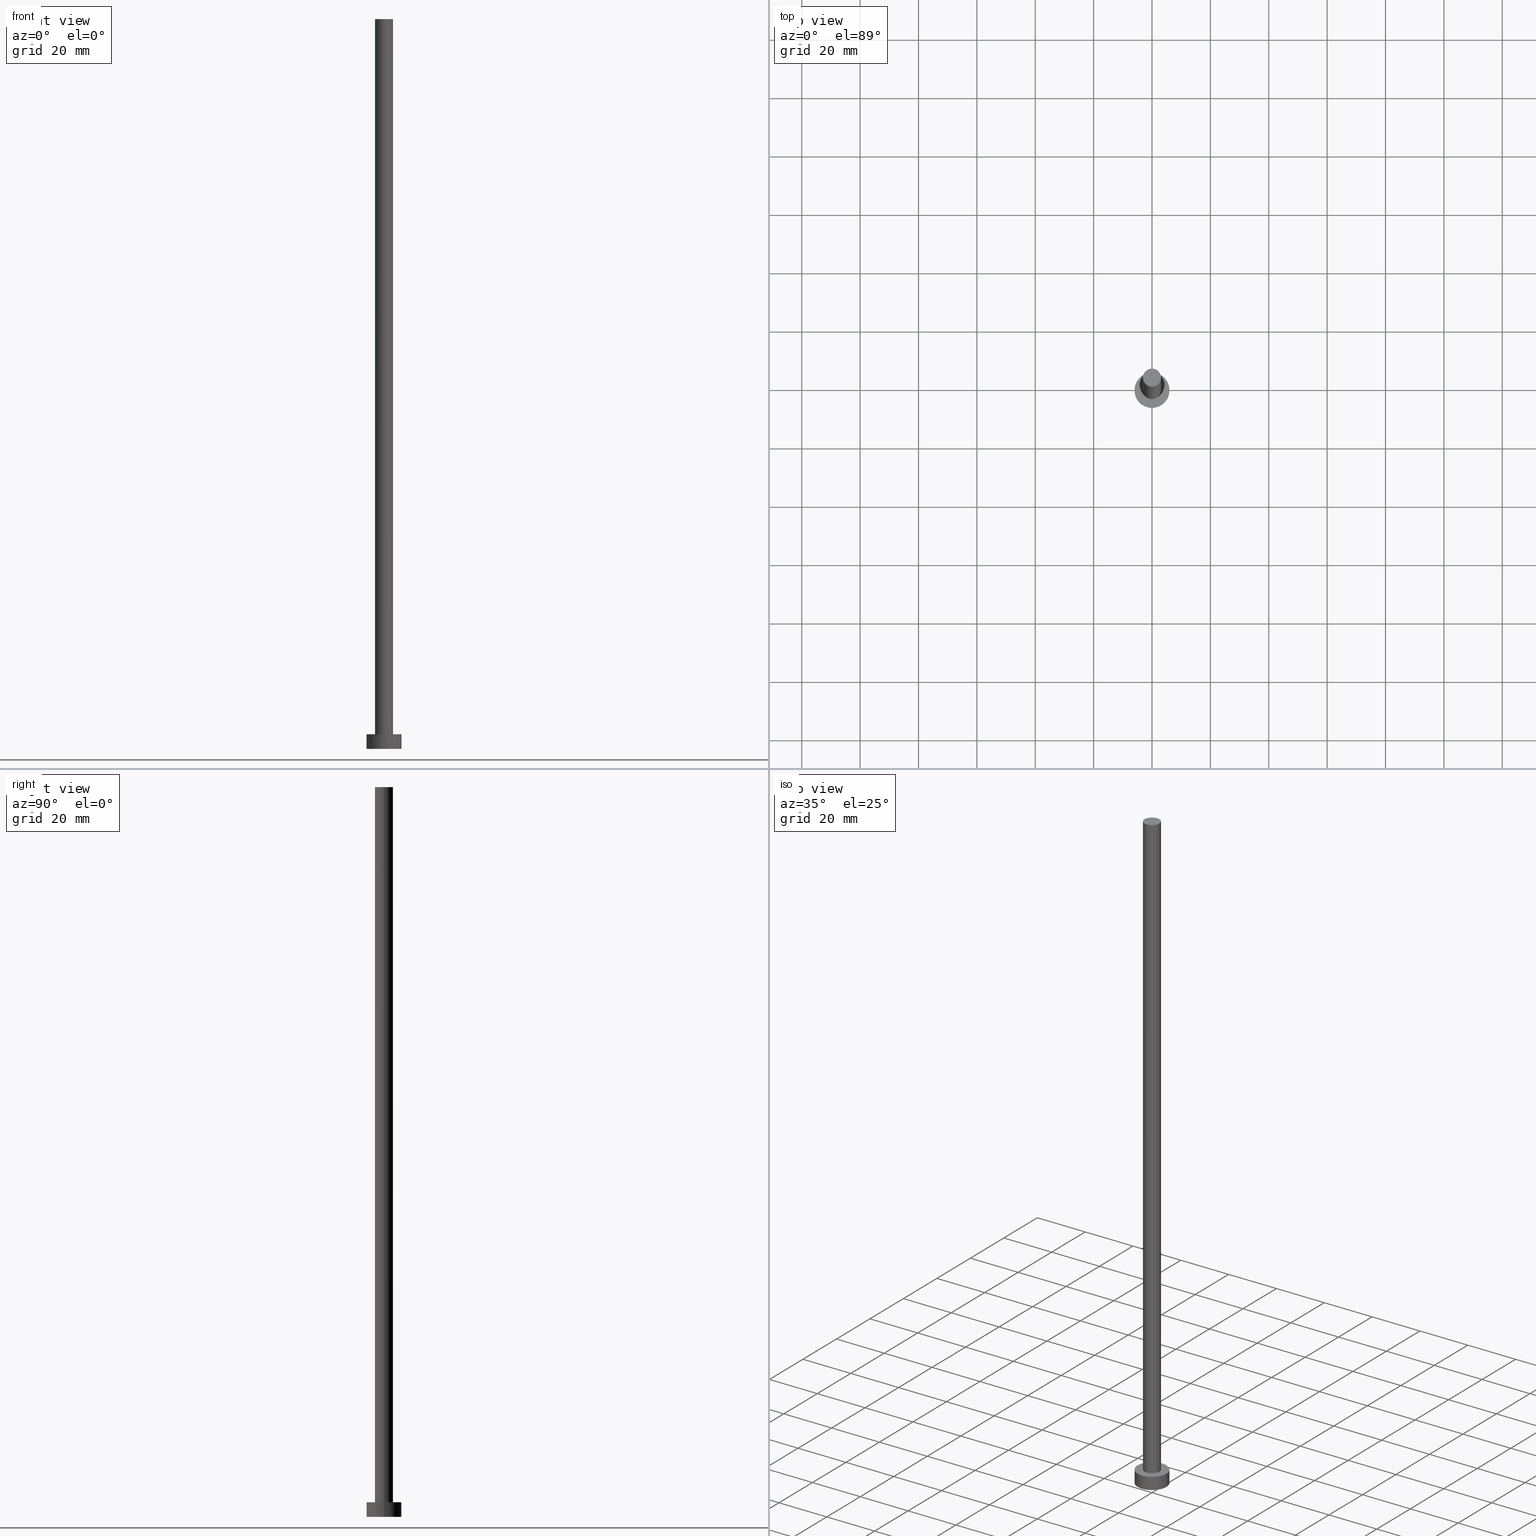
[diagram: canonical four-view strip — front | top / right | iso, engineering-drawing reading convention]
A machine part, canonical four-view strip (front | top / right | iso — engineering-drawing reading convention). The complete STEP part file that produces these views, byte-faithful:
ISO-10303-21;
HEADER;
FILE_DESCRIPTION (( 'STEP AP203' ),
    '1' );
FILE_NAME ('3571.STEP',
    '2023-02-13T15:19:29',
    ( '' ),
    ( '' ),
    'SwSTEP 2.0',
    'SolidWorks 2019',
    '' );
FILE_SCHEMA (( 'CONFIG_CONTROL_DESIGN' ));
ENDSEC;

DATA;
#1 = CIRCLE ( 'NONE', #152, 6.000000000000000888 ) ;
#2 = CARTESIAN_POINT ( 'NONE',  ( -6.000000000000000888, 0.000000000000000000, 5.000000000000000000 ) ) ;
#3 = DIRECTION ( 'NONE',  ( 1.000000000000000000, 0.000000000000000000, -0.000000000000000000 ) ) ;
#4 = DIRECTION ( 'NONE',  ( -0.000000000000000000, -0.000000000000000000, -1.000000000000000000 ) ) ;
#5 = EDGE_CURVE ( 'NONE', #32, #56, #54, .T. ) ;
#6 = ORIENTED_EDGE ( 'NONE', *, *, #50, .F. ) ;
#7 = CARTESIAN_POINT ( 'NONE',  ( 0.000000000000000000, 0.000000000000000000, 250.0000000000000000 ) ) ;
#8 = ORIENTED_EDGE ( 'NONE', *, *, #90, .F. ) ;
#9 = EDGE_CURVE ( 'NONE', #96, #78, #16, .T. ) ;
#10 =( NAMED_UNIT ( * ) SI_UNIT ( $, .STERADIAN. ) SOLID_ANGLE_UNIT ( ) );
#11 = APPLICATION_CONTEXT ( 'configuration controlled 3d designs of mechanical parts and assemblies' ) ;
#12 = AXIS2_PLACEMENT_3D ( 'NONE', #85, #209, #183 ) ;
#13 = EDGE_LOOP ( 'NONE', ( #6, #158 ) ) ;
#14 = CYLINDRICAL_SURFACE ( 'NONE', #147, 3.100000000000000089 ) ;
#15 = AXIS2_PLACEMENT_3D ( 'NONE', #99, #233, #92 ) ;
#16 = LINE ( 'NONE', #98, #137 ) ;
#17 = APPROVAL_STATUS ( 'not_yet_approved' ) ;
#18 = DIRECTION ( 'NONE',  ( 1.000000000000000000, 0.000000000000000000, 0.000000000000000000 ) ) ;
#19 = DIRECTION ( 'NONE',  ( 0.000000000000000000, 0.000000000000000000, 1.000000000000000000 ) ) ;
#20 = CALENDAR_DATE ( 2023, 13, 2 ) ;
#21 = ORGANIZATION ( 'NEUR�EN�', 'NEUR�EN�', '' ) ;
#22 = DIRECTION ( 'NONE',  ( -0.000000000000000000, -0.000000000000000000, -1.000000000000000000 ) ) ;
#23 = CC_DESIGN_PERSON_AND_ORGANIZATION_ASSIGNMENT ( #229, #214, ( #205 ) ) ;
#24 = FACE_BOUND ( 'NONE', #59, .T. ) ;
#25 = DIRECTION ( 'NONE',  ( 0.000000000000000000, 0.000000000000000000, 1.000000000000000000 ) ) ;
#26 = CC_DESIGN_SECURITY_CLASSIFICATION ( #66, ( #241 ) ) ;
#27 = AXIS2_PLACEMENT_3D ( 'NONE', #218, #37, #18 ) ;
#28 = PERSON_AND_ORGANIZATION ( #167, #21 ) ;
#29 = EDGE_LOOP ( 'NONE', ( #93, #139 ) ) ;
#30 = AXIS2_PLACEMENT_3D ( 'NONE', #235, #72, #150 ) ;
#31 = COORDINATED_UNIVERSAL_TIME_OFFSET ( 1, 0, .AHEAD. ) ;
#32 = VERTEX_POINT ( 'NONE', #77 ) ;
#33 = CC_DESIGN_DATE_AND_TIME_ASSIGNMENT ( #173, #200, ( #57 ) ) ;
#34 = ORIENTED_EDGE ( 'NONE', *, *, #5, .T. ) ;
#35 = ORIENTED_EDGE ( 'NONE', *, *, #5, .F. ) ;
#36 = CALENDAR_DATE ( 2023, 13, 2 ) ;
#37 = DIRECTION ( 'NONE',  ( 0.000000000000000000, 0.000000000000000000, 1.000000000000000000 ) ) ;
#38 = EDGE_CURVE ( 'NONE', #73, #154, #231, .T. ) ;
#39 = COORDINATED_UNIVERSAL_TIME_OFFSET ( 1, 0, .AHEAD. ) ;
#40 = DIRECTION ( 'NONE',  ( 0.000000000000000000, 0.000000000000000000, 1.000000000000000000 ) ) ;
#41 = CIRCLE ( 'NONE', #252, 6.000000000000000888 ) ;
#42 = PERSON_AND_ORGANIZATION ( #167, #21 ) ;
#43 =( GEOMETRIC_REPRESENTATION_CONTEXT ( 3 ) GLOBAL_UNCERTAINTY_ASSIGNED_CONTEXT ( ( #186 ) ) GLOBAL_UNIT_ASSIGNED_CONTEXT ( ( #51, #75, #10 ) ) REPRESENTATION_CONTEXT ( 'NONE', 'WORKASPACE' ) );
#44 = ADVANCED_FACE ( 'NONE', ( #177 ), #251, .T. ) ;
#45 = AXIS2_PLACEMENT_3D ( 'NONE', #228, #206, #109 ) ;
#46 = DIRECTION ( 'NONE',  ( 1.000000000000000000, 0.000000000000000000, 0.000000000000000000 ) ) ;
#47 = CARTESIAN_POINT ( 'NONE',  ( -6.000000000000000888, 0.000000000000000000, 5.000000000000000000 ) ) ;
#48 = LINE ( 'NONE', #47, #71 ) ;
#49 = PERSON_AND_ORGANIZATION_ROLE ( 'creator' ) ;
#50 = EDGE_CURVE ( 'NONE', #213, #191, #41, .T. ) ;
#51 =( LENGTH_UNIT ( ) NAMED_UNIT ( * ) SI_UNIT ( .MILLI., .METRE. ) );
#52 = ORIENTED_EDGE ( 'NONE', *, *, #90, .T. ) ;
#53 = MECHANICAL_CONTEXT ( 'NONE', #146, 'mechanical' ) ;
#54 = LINE ( 'NONE', #136, #226 ) ;
#55 = CARTESIAN_POINT ( 'NONE',  ( 6.000000000000000888, 7.347880794884120722E-16, 5.000000000000000000 ) ) ;
#56 = VERTEX_POINT ( 'NONE', #163 ) ;
#57 = PRODUCT_DEFINITION ( 'NEZN�M�', '', #241, #87 ) ;
#58 = PERSON_AND_ORGANIZATION ( #167, #21 ) ;
#59 = EDGE_LOOP ( 'NONE', ( #248, #171 ) ) ;
#60 = DATE_AND_TIME ( #102, #133 ) ;
#61 = ADVANCED_FACE ( 'NONE', ( #103 ), #202, .F. ) ;
#62 = APPROVAL_ROLE ( '' ) ;
#63 = APPROVAL_DATE_TIME ( #127, #204 ) ;
#64 = EDGE_CURVE ( 'NONE', #191, #213, #1, .T. ) ;
#65 = DIRECTION ( 'NONE',  ( -1.000000000000000000, 0.000000000000000000, 0.000000000000000000 ) ) ;
#66 = SECURITY_CLASSIFICATION ( '', '', #220 ) ;
#67 = CARTESIAN_POINT ( 'NONE',  ( 0.000000000000000000, 0.000000000000000000, 5.000000000000000000 ) ) ;
#68 = DIRECTION ( 'NONE',  ( -0.000000000000000000, -0.000000000000000000, -1.000000000000000000 ) ) ;
#69 = CC_DESIGN_PERSON_AND_ORGANIZATION_ASSIGNMENT ( #224, #182, ( #241 ) ) ;
#70 = ORIENTED_EDGE ( 'NONE', *, *, #114, .T. ) ;
#71 = VECTOR ( 'NONE', #68, 1000.000000000000000 ) ;
#72 = DIRECTION ( 'NONE',  ( 0.000000000000000000, 0.000000000000000000, 1.000000000000000000 ) ) ;
#73 = VERTEX_POINT ( 'NONE', #161 ) ;
#74 = VECTOR ( 'NONE', #175, 1000.000000000000000 ) ;
#75 =( NAMED_UNIT ( * ) PLANE_ANGLE_UNIT ( ) SI_UNIT ( $, .RADIAN. ) );
#76 = CALENDAR_DATE ( 2023, 13, 2 ) ;
#77 = CARTESIAN_POINT ( 'NONE',  ( 3.100000000000000089, 3.796405077356794918E-16, 250.0000000000000000 ) ) ;
#78 = VERTEX_POINT ( 'NONE', #80 ) ;
#79 = DIRECTION ( 'NONE',  ( 1.000000000000000000, 0.000000000000000000, 0.000000000000000000 ) ) ;
#80 = CARTESIAN_POINT ( 'NONE',  ( -3.100000000000000089, 0.000000000000000000, 5.000000000000000000 ) ) ;
#81 = CARTESIAN_POINT ( 'NONE',  ( 0.000000000000000000, 0.000000000000000000, 250.0000000000000000 ) ) ;
#82 = CARTESIAN_POINT ( 'NONE',  ( 0.000000000000000000, 0.000000000000000000, 0.000000000000000000 ) ) ;
#83 = EDGE_CURVE ( 'NONE', #32, #96, #184, .T. ) ;
#84 = CYLINDRICAL_SURFACE ( 'NONE', #88, 6.000000000000000888 ) ;
#85 = CARTESIAN_POINT ( 'NONE',  ( 0.000000000000000000, 0.000000000000000000, 250.0000000000000000 ) ) ;
#86 = FACE_OUTER_BOUND ( 'NONE', #151, .T. ) ;
#87 = DESIGN_CONTEXT ( 'detailed design', #11, 'design' ) ;
#88 = AXIS2_PLACEMENT_3D ( 'NONE', #207, #164, #65 ) ;
#89 = FACE_OUTER_BOUND ( 'NONE', #100, .T. ) ;
#90 = EDGE_CURVE ( 'NONE', #154, #213, #48, .T. ) ;
#91 = ORIENTED_EDGE ( 'NONE', *, *, #192, .F. ) ;
#92 = DIRECTION ( 'NONE',  ( 1.000000000000000000, 0.000000000000000000, 0.000000000000000000 ) ) ;
#93 = ORIENTED_EDGE ( 'NONE', *, *, #162, .T. ) ;
#94 = CLOSED_SHELL ( 'NONE', ( #225, #160, #153, #172, #61, #178, #44 ) ) ;
#95 = APPROVAL_DATE_TIME ( #170, #216 ) ;
#96 = VERTEX_POINT ( 'NONE', #111 ) ;
#97 = CC_DESIGN_APPROVAL ( #204, ( #241 ) ) ;
#98 = CARTESIAN_POINT ( 'NONE',  ( -3.100000000000000089, 0.000000000000000000, 250.0000000000000000 ) ) ;
#99 = CARTESIAN_POINT ( 'NONE',  ( 0.000000000000000000, 0.000000000000000000, 0.000000000000000000 ) ) ;
#100 = EDGE_LOOP ( 'NONE', ( #115, #91, #52, #120 ) ) ;
#101 = AXIS2_PLACEMENT_3D ( 'NONE', #243, #25, #148 ) ;
#102 = CALENDAR_DATE ( 2023, 13, 2 ) ;
#103 = FACE_OUTER_BOUND ( 'NONE', #13, .T. ) ;
#104 = SHAPE_DEFINITION_REPRESENTATION ( #237, #159 ) ;
#105 = DIRECTION ( 'NONE',  ( 0.000000000000000000, 0.000000000000000000, 1.000000000000000000 ) ) ;
#106 = APPROVAL_STATUS ( 'not_yet_approved' ) ;
#107 = LOCAL_TIME ( 16, 19, 29.00000000000000000, #39 ) ;
#108 = FACE_OUTER_BOUND ( 'NONE', #132, .T. ) ;
#109 = DIRECTION ( 'NONE',  ( 1.000000000000000000, 0.000000000000000000, 0.000000000000000000 ) ) ;
#110 = CARTESIAN_POINT ( 'NONE',  ( 0.000000000000000000, 0.000000000000000000, 250.0000000000000000 ) ) ;
#111 = CARTESIAN_POINT ( 'NONE',  ( -3.100000000000000089, 0.000000000000000000, 250.0000000000000000 ) ) ;
#112 = AXIS2_PLACEMENT_3D ( 'NONE', #81, #105, #254 ) ;
#113 = PERSON_AND_ORGANIZATION ( #167, #21 ) ;
#114 = EDGE_CURVE ( 'NONE', #56, #78, #239, .T. ) ;
#115 = ORIENTED_EDGE ( 'NONE', *, *, #222, .F. ) ;
#116 = FACE_OUTER_BOUND ( 'NONE', #155, .T. ) ;
#117 = ORIENTED_EDGE ( 'NONE', *, *, #38, .F. ) ;
#118 = APPROVAL_STATUS ( 'not_yet_approved' ) ;
#119 = APPLICATION_PROTOCOL_DEFINITION ( 'international standard', 'config_control_design', 1994, #11 ) ;
#120 = ORIENTED_EDGE ( 'NONE', *, *, #50, .T. ) ;
#121 = AXIS2_PLACEMENT_3D ( 'NONE', #129, #22, #255 ) ;
#122 = CC_DESIGN_APPROVAL ( #216, ( #57 ) ) ;
#123 = ORIENTED_EDGE ( 'NONE', *, *, #9, .T. ) ;
#124 = PERSON_AND_ORGANIZATION ( #167, #21 ) ;
#125 = DIRECTION ( 'NONE',  ( 0.000000000000000000, 0.000000000000000000, 1.000000000000000000 ) ) ;
#126 = APPROVAL_DATE_TIME ( #60, #210 ) ;
#127 = DATE_AND_TIME ( #193, #219 ) ;
#128 = CARTESIAN_POINT ( 'NONE',  ( 0.000000000000000000, 0.000000000000000000, 0.000000000000000000 ) ) ;
#129 = CARTESIAN_POINT ( 'NONE',  ( 0.000000000000000000, 0.000000000000000000, 5.000000000000000000 ) ) ;
#130 = DIRECTION ( 'NONE',  ( 0.000000000000000000, 0.000000000000000000, 1.000000000000000000 ) ) ;
#131 = AXIS2_PLACEMENT_3D ( 'NONE', #188, #130, #46 ) ;
#132 = EDGE_LOOP ( 'NONE', ( #194, #230 ) ) ;
#133 = LOCAL_TIME ( 16, 19, 29.00000000000000000, #201 ) ;
#134 = CC_DESIGN_DATE_AND_TIME_ASSIGNMENT ( #141, #238, ( #66 ) ) ;
#135 = LINE ( 'NONE', #55, #74 ) ;
#136 = CARTESIAN_POINT ( 'NONE',  ( 3.100000000000000089, 3.796405077356794918E-16, 250.0000000000000000 ) ) ;
#137 = VECTOR ( 'NONE', #250, 1000.000000000000000 ) ;
#138 = DIRECTION ( 'NONE',  ( -1.000000000000000000, 0.000000000000000000, 0.000000000000000000 ) ) ;
#139 = ORIENTED_EDGE ( 'NONE', *, *, #83, .T. ) ;
#140 = CIRCLE ( 'NONE', #30, 6.000000000000000888 ) ;
#141 = DATE_AND_TIME ( #20, #107 ) ;
#142 = EDGE_LOOP ( 'NONE', ( #117, #174, #234, #8 ) ) ;
#143 = DIRECTION ( 'NONE',  ( 1.000000000000000000, 0.000000000000000000, 0.000000000000000000 ) ) ;
#144 = PERSON_AND_ORGANIZATION_ROLE ( 'classification_officer' ) ;
#145 = CC_DESIGN_PERSON_AND_ORGANIZATION_ASSIGNMENT ( #28, #49, ( #57 ) ) ;
#146 = APPLICATION_CONTEXT ( 'configuration controlled 3d designs of mechanical parts and assemblies' ) ;
#147 = AXIS2_PLACEMENT_3D ( 'NONE', #7, #211, #138 ) ;
#148 = DIRECTION ( 'NONE',  ( 1.000000000000000000, 0.000000000000000000, 0.000000000000000000 ) ) ;
#149 = CIRCLE ( 'NONE', #101, 3.100000000000000089 ) ;
#150 = DIRECTION ( 'NONE',  ( 1.000000000000000000, 0.000000000000000000, 0.000000000000000000 ) ) ;
#151 = EDGE_LOOP ( 'NONE', ( #35, #232, #123, #157 ) ) ;
#152 = AXIS2_PLACEMENT_3D ( 'NONE', #128, #40, #79 ) ;
#153 = ADVANCED_FACE ( 'NONE', ( #89 ), #244, .T. ) ;
#154 = VERTEX_POINT ( 'NONE', #2 ) ;
#155 = EDGE_LOOP ( 'NONE', ( #215, #34, #70, #195 ) ) ;
#156 = APPLICATION_PROTOCOL_DEFINITION ( 'international standard', 'config_control_design', 1994, #146 ) ;
#157 = ORIENTED_EDGE ( 'NONE', *, *, #169, .T. ) ;
#158 = ORIENTED_EDGE ( 'NONE', *, *, #64, .F. ) ;
#159 = ADVANCED_BREP_SHAPE_REPRESENTATION ( '3571', ( #196, #15 ), #43 ) ;
#160 = ADVANCED_FACE ( 'NONE', ( #166 ), #84, .T. ) ;
#161 = CARTESIAN_POINT ( 'NONE',  ( 6.000000000000000888, 7.347880794884120722E-16, 5.000000000000000000 ) ) ;
#162 = EDGE_CURVE ( 'NONE', #96, #32, #149, .T. ) ;
#163 = CARTESIAN_POINT ( 'NONE',  ( 3.100000000000000089, 3.796405077356794918E-16, 5.000000000000000000 ) ) ;
#164 = DIRECTION ( 'NONE',  ( -0.000000000000000000, -0.000000000000000000, -1.000000000000000000 ) ) ;
#165 = AXIS2_PLACEMENT_3D ( 'NONE', #110, #4, #187 ) ;
#166 = FACE_OUTER_BOUND ( 'NONE', #142, .T. ) ;
#167 = PERSON ( 'NEUR�EN�', 'NEUR�EN�', 'NEUR�EN�', ('NEUR�EN�'), ('NEUR�EN�'), ('NEUR�EN�') ) ;
#168 = CYLINDRICAL_SURFACE ( 'NONE', #165, 3.100000000000000089 ) ;
#169 = EDGE_CURVE ( 'NONE', #78, #56, #236, .T. ) ;
#170 = DATE_AND_TIME ( #76, #199 ) ;
#171 = ORIENTED_EDGE ( 'NONE', *, *, #114, .F. ) ;
#172 = ADVANCED_FACE ( 'NONE', ( #24, #108 ), #208, .T. ) ;
#173 = DATE_AND_TIME ( #36, #223 ) ;
#174 = ORIENTED_EDGE ( 'NONE', *, *, #222, .T. ) ;
#175 = DIRECTION ( 'NONE',  ( -0.000000000000000000, -0.000000000000000000, -1.000000000000000000 ) ) ;
#176 = APPROVAL_ROLE ( '' ) ;
#177 = FACE_OUTER_BOUND ( 'NONE', #29, .T. ) ;
#178 = ADVANCED_FACE ( 'NONE', ( #86 ), #168, .T. ) ;
#179 = AXIS2_PLACEMENT_3D ( 'NONE', #221, #19, #181 ) ;
#180 = APPROVAL_PERSON_ORGANIZATION ( #113, #204, #190 ) ;
#181 = DIRECTION ( 'NONE',  ( 1.000000000000000000, 0.000000000000000000, -0.000000000000000000 ) ) ;
#182 = PERSON_AND_ORGANIZATION_ROLE ( 'creator' ) ;
#183 = DIRECTION ( 'NONE',  ( 1.000000000000000000, 0.000000000000000000, 0.000000000000000000 ) ) ;
#184 = CIRCLE ( 'NONE', #12, 3.100000000000000089 ) ;
#185 = DIRECTION ( 'NONE',  ( 0.000000000000000000, 0.000000000000000000, 1.000000000000000000 ) ) ;
#186 = UNCERTAINTY_MEASURE_WITH_UNIT (LENGTH_MEASURE( 1.000000000000000082E-05 ), #51, 'distance_accuracy_value', 'NONE');
#187 = DIRECTION ( 'NONE',  ( -1.000000000000000000, 0.000000000000000000, 0.000000000000000000 ) ) ;
#188 = CARTESIAN_POINT ( 'NONE',  ( 0.000000000000000000, 0.000000000000000000, 5.000000000000000000 ) ) ;
#189 = AXIS2_PLACEMENT_3D ( 'NONE', #67, #185, #3 ) ;
#190 = APPROVAL_ROLE ( '' ) ;
#191 = VERTEX_POINT ( 'NONE', #249 ) ;
#192 = EDGE_CURVE ( 'NONE', #154, #73, #140, .T. ) ;
#193 = CALENDAR_DATE ( 2023, 13, 2 ) ;
#194 = ORIENTED_EDGE ( 'NONE', *, *, #192, .T. ) ;
#195 = ORIENTED_EDGE ( 'NONE', *, *, #9, .F. ) ;
#196 = MANIFOLD_SOLID_BREP ( 'P�idat vysunut�m3', #94 ) ;
#197 = COORDINATED_UNIVERSAL_TIME_OFFSET ( 1, 0, .AHEAD. ) ;
#198 = DIRECTION ( 'NONE',  ( -0.000000000000000000, -0.000000000000000000, -1.000000000000000000 ) ) ;
#199 = LOCAL_TIME ( 16, 19, 29.00000000000000000, #197 ) ;
#200 = DATE_TIME_ROLE ( 'creation_date' ) ;
#201 = COORDINATED_UNIVERSAL_TIME_OFFSET ( 1, 0, .AHEAD. ) ;
#202 = PLANE ( 'NONE',  #179 ) ;
#203 = PERSON_AND_ORGANIZATION_ROLE ( 'design_supplier' ) ;
#204 = APPROVAL ( #17, 'NEUR�EN�' ) ;
#205 = PRODUCT ( '3571', '3571', '', ( #53 ) ) ;
#206 = DIRECTION ( 'NONE',  ( 0.000000000000000000, 0.000000000000000000, 1.000000000000000000 ) ) ;
#207 = CARTESIAN_POINT ( 'NONE',  ( 0.000000000000000000, 0.000000000000000000, 5.000000000000000000 ) ) ;
#208 = PLANE ( 'NONE',  #189 ) ;
#209 = DIRECTION ( 'NONE',  ( 0.000000000000000000, 0.000000000000000000, 1.000000000000000000 ) ) ;
#210 = APPROVAL ( #106, 'NEUR�EN�' ) ;
#211 = DIRECTION ( 'NONE',  ( -0.000000000000000000, -0.000000000000000000, -1.000000000000000000 ) ) ;
#212 = APPROVAL_PERSON_ORGANIZATION ( #42, #210, #62 ) ;
#213 = VERTEX_POINT ( 'NONE', #245 ) ;
#214 = PERSON_AND_ORGANIZATION_ROLE ( 'design_owner' ) ;
#215 = ORIENTED_EDGE ( 'NONE', *, *, #83, .F. ) ;
#216 = APPROVAL ( #118, 'NEUR�EN�' ) ;
#217 = COORDINATED_UNIVERSAL_TIME_OFFSET ( 1, 0, .AHEAD. ) ;
#218 = CARTESIAN_POINT ( 'NONE',  ( 0.000000000000000000, 0.000000000000000000, 5.000000000000000000 ) ) ;
#219 = LOCAL_TIME ( 16, 19, 29.00000000000000000, #31 ) ;
#220 = SECURITY_CLASSIFICATION_LEVEL ( 'unclassified' ) ;
#221 = CARTESIAN_POINT ( 'NONE',  ( 0.000000000000000000, 0.000000000000000000, 0.000000000000000000 ) ) ;
#222 = EDGE_CURVE ( 'NONE', #73, #191, #135, .T. ) ;
#223 = LOCAL_TIME ( 16, 19, 29.00000000000000000, #217 ) ;
#224 = PERSON_AND_ORGANIZATION ( #167, #21 ) ;
#225 = ADVANCED_FACE ( 'NONE', ( #116 ), #14, .T. ) ;
#226 = VECTOR ( 'NONE', #198, 1000.000000000000000 ) ;
#227 = CC_DESIGN_APPROVAL ( #210, ( #66 ) ) ;
#228 = CARTESIAN_POINT ( 'NONE',  ( 0.000000000000000000, 0.000000000000000000, 5.000000000000000000 ) ) ;
#229 = PERSON_AND_ORGANIZATION ( #167, #21 ) ;
#230 = ORIENTED_EDGE ( 'NONE', *, *, #38, .T. ) ;
#231 = CIRCLE ( 'NONE', #27, 6.000000000000000888 ) ;
#232 = ORIENTED_EDGE ( 'NONE', *, *, #162, .F. ) ;
#233 = DIRECTION ( 'NONE',  ( 0.000000000000000000, 0.000000000000000000, 1.000000000000000000 ) ) ;
#234 = ORIENTED_EDGE ( 'NONE', *, *, #64, .T. ) ;
#235 = CARTESIAN_POINT ( 'NONE',  ( 0.000000000000000000, 0.000000000000000000, 5.000000000000000000 ) ) ;
#236 = CIRCLE ( 'NONE', #45, 3.100000000000000089 ) ;
#237 = PRODUCT_DEFINITION_SHAPE ( 'NONE', 'NONE',  #57 ) ;
#238 = DATE_TIME_ROLE ( 'classification_date' ) ;
#239 = CIRCLE ( 'NONE', #131, 3.100000000000000089 ) ;
#240 = APPROVAL_PERSON_ORGANIZATION ( #246, #216, #176 ) ;
#241 = PRODUCT_DEFINITION_FORMATION_WITH_SPECIFIED_SOURCE ( 'LIBOVOLN�', '', #205, .NOT_KNOWN. ) ;
#242 = PRODUCT_RELATED_PRODUCT_CATEGORY ( 'detail', '', ( #205 ) ) ;
#243 = CARTESIAN_POINT ( 'NONE',  ( 0.000000000000000000, 0.000000000000000000, 250.0000000000000000 ) ) ;
#244 = CYLINDRICAL_SURFACE ( 'NONE', #121, 6.000000000000000888 ) ;
#245 = CARTESIAN_POINT ( 'NONE',  ( -6.000000000000000888, 0.000000000000000000, 0.000000000000000000 ) ) ;
#246 = PERSON_AND_ORGANIZATION ( #167, #21 ) ;
#247 = CC_DESIGN_PERSON_AND_ORGANIZATION_ASSIGNMENT ( #124, #144, ( #66 ) ) ;
#248 = ORIENTED_EDGE ( 'NONE', *, *, #169, .F. ) ;
#249 = CARTESIAN_POINT ( 'NONE',  ( 6.000000000000000888, 7.347880794884120722E-16, 0.000000000000000000 ) ) ;
#250 = DIRECTION ( 'NONE',  ( -0.000000000000000000, -0.000000000000000000, -1.000000000000000000 ) ) ;
#251 = PLANE ( 'NONE',  #112 ) ;
#252 = AXIS2_PLACEMENT_3D ( 'NONE', #82, #125, #143 ) ;
#253 = CC_DESIGN_PERSON_AND_ORGANIZATION_ASSIGNMENT ( #58, #203, ( #241 ) ) ;
#254 = DIRECTION ( 'NONE',  ( 1.000000000000000000, 0.000000000000000000, -0.000000000000000000 ) ) ;
#255 = DIRECTION ( 'NONE',  ( -1.000000000000000000, 0.000000000000000000, 0.000000000000000000 ) ) ;
ENDSEC;
END-ISO-10303-21;
